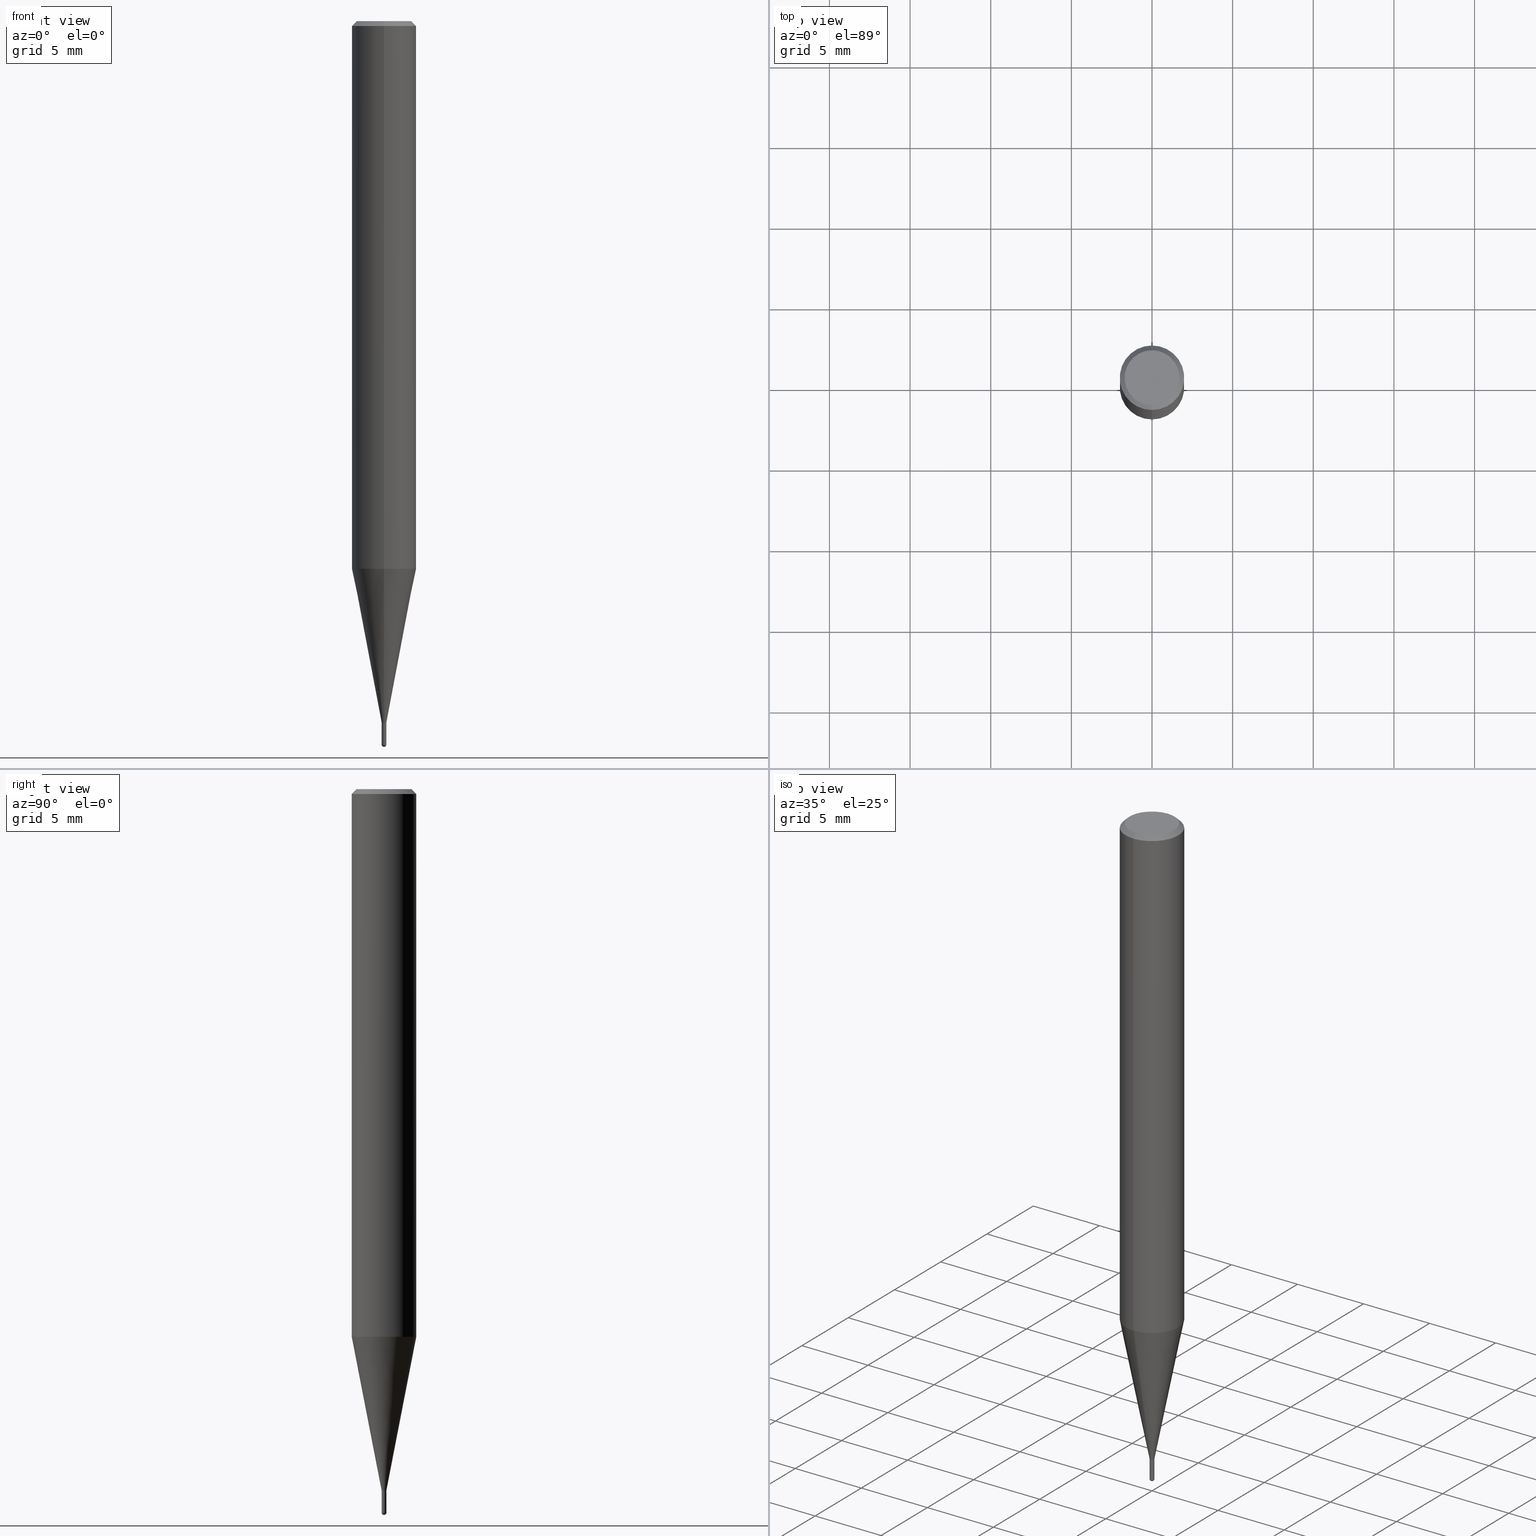
[diagram: canonical four-view strip — front | top / right | iso, engineering-drawing reading convention]
A machine part, canonical four-view strip (front | top / right | iso — engineering-drawing reading convention). The complete STEP part file that produces these views, byte-faithful:
ISO-10303-21;
HEADER;
FILE_DESCRIPTION(('no description'),'unknown implementation level');
FILE_NAME('CSELB2003-015-Huellk.stp','  ',('CIMSOURCE GmbH'),('CADClick - KiM GmbH - www.kimweb.de'),'unknown preprocess','ACIS','unknown authorization');
FILE_SCHEMA(('automotive_design'));
ENDSEC;
DATA;
#1=MECHANICAL_DESIGN_GEOMETRIC_PRESENTATION_REPRESENTATION(' ',(#14,#15,#16,#17,#18,#19,#20,#21,#22,#23,#24,#25,#26,#27,#28,#29,#30,#31,#32,#33,#34,#35,#36,#37,#38,#39,#40,#41,#42,#43,#44,#45,#46,#47,#48,#49,#50,#51,#52,#53,#54,#55,#56,#57,#58,#59,#60,#61,#62,#63,#64,#65,#66,#67,#68,#69,#70,#71,#72,#73,#74),#10);
#2=PRODUCT_DEFINITION_CONTEXT('',#75,'design');
#3=APPLICATION_PROTOCOL_DEFINITION('INTERNATIONAL STANDARD','automotive_design',1994,#75);
#4=PRODUCT_CATEGORY_RELATIONSHIP('NONE','NONE',#76,#77);
#5=SHAPE_DEFINITION_REPRESENTATION(#78,#79);
#6=PRODUCT_DEFINITION_CONTEXT('',#80,'design');
#7=APPLICATION_PROTOCOL_DEFINITION('INTERNATIONAL STANDARD','automotive_design',1994,#80);
#8=PRODUCT_CATEGORY_RELATIONSHIP('NONE','NONE',#81,#82);
#9=SHAPE_DEFINITION_REPRESENTATION(#83,#84);
#10= (GEOMETRIC_REPRESENTATION_CONTEXT(3)GLOBAL_UNCERTAINTY_ASSIGNED_CONTEXT((#87))GLOBAL_UNIT_ASSIGNED_CONTEXT((#89,#90,#91))REPRESENTATION_CONTEXT('NONE','WORKSPACE'));
#14=STYLED_ITEM('',(#93),#94);
#15=STYLED_ITEM('',(#95),#96);
#16=STYLED_ITEM('',(#97),#98);
#17=STYLED_ITEM('',(#99),#100);
#18=STYLED_ITEM('',(#101),#102);
#19=STYLED_ITEM('',(#103),#104);
#20=STYLED_ITEM('',(#105),#106);
#21=STYLED_ITEM('',(#107),#108);
#22=STYLED_ITEM('',(#109),#110);
#23=STYLED_ITEM('',(#111),#112);
#24=STYLED_ITEM('',(#113),#114);
#25=STYLED_ITEM('',(#115),#116);
#26=STYLED_ITEM('',(#117),#118);
#27=STYLED_ITEM('',(#119),#120);
#28=STYLED_ITEM('',(#121),#122);
#29=STYLED_ITEM('',(#123),#124);
#30=STYLED_ITEM('',(#125),#126);
#31=STYLED_ITEM('',(#127),#128);
#32=STYLED_ITEM('',(#129),#130);
#33=STYLED_ITEM('',(#131),#132);
#34=STYLED_ITEM('',(#133),#134);
#35=STYLED_ITEM('',(#135),#136);
#36=STYLED_ITEM('',(#137),#138);
#37=STYLED_ITEM('',(#139),#140);
#38=STYLED_ITEM('',(#141),#142);
#39=STYLED_ITEM('',(#143),#144);
#40=STYLED_ITEM('',(#145),#146);
#41=STYLED_ITEM('',(#147),#148);
#42=STYLED_ITEM('',(#149),#150);
#43=STYLED_ITEM('',(#151),#152);
#44=STYLED_ITEM('',(#153),#154);
#45=STYLED_ITEM('',(#155),#156);
#46=STYLED_ITEM('',(#157),#158);
#47=STYLED_ITEM('',(#159),#160);
#48=STYLED_ITEM('',(#161),#162);
#49=STYLED_ITEM('',(#163),#164);
#50=STYLED_ITEM('',(#165),#166);
#51=STYLED_ITEM('',(#167),#168);
#52=STYLED_ITEM('',(#169),#170);
#53=STYLED_ITEM('',(#171),#172);
#54=STYLED_ITEM('',(#173),#174);
#55=STYLED_ITEM('',(#175),#176);
#56=STYLED_ITEM('',(#177),#178);
#57=STYLED_ITEM('',(#179),#180);
#58=STYLED_ITEM('',(#181),#182);
#59=STYLED_ITEM('',(#183),#184);
#60=STYLED_ITEM('',(#185),#186);
#61=STYLED_ITEM('',(#187),#188);
#62=STYLED_ITEM('',(#189),#190);
#63=STYLED_ITEM('',(#191),#192);
#64=STYLED_ITEM('',(#193),#194);
#65=STYLED_ITEM('',(#195),#196);
#66=STYLED_ITEM('',(#197),#198);
#67=STYLED_ITEM('',(#199),#200);
#68=STYLED_ITEM('',(#201),#202);
#69=STYLED_ITEM('',(#203),#204);
#70=STYLED_ITEM('',(#205),#206);
#71=STYLED_ITEM('',(#207),#208);
#72=STYLED_ITEM('',(#209),#210);
#73=STYLED_ITEM('',(#211),#212);
#74=STYLED_ITEM('',(#213),#214);
#75=APPLICATION_CONTEXT(' ');
#76=PRODUCT_CATEGORY('part','NONE');
#77=PRODUCT_RELATED_PRODUCT_CATEGORY('detail',' ',(#215));
#78=PRODUCT_DEFINITION_SHAPE('NONE','NONE',#216);
#79=ADVANCED_BREP_SHAPE_REPRESENTATION('1',(#196,#217),#10);
#80=APPLICATION_CONTEXT(' ');
#81=PRODUCT_CATEGORY('part','NONE');
#82=PRODUCT_RELATED_PRODUCT_CATEGORY('detail',' ',(#218));
#83=PRODUCT_DEFINITION_SHAPE('NONE','NONE',#219);
#84=ADVANCED_BREP_SHAPE_REPRESENTATION('2',(#124,#220),#10);
#87=UNCERTAINTY_MEASURE_WITH_UNIT(LENGTH_MEASURE(1.0E-006),#89,'','');
#89= (CONVERSION_BASED_UNIT('MILLIMETRE',#223)LENGTH_UNIT()NAMED_UNIT(#226));
#90= (NAMED_UNIT(#228)PLANE_ANGLE_UNIT()SI_UNIT($,.RADIAN.));
#91= (NAMED_UNIT(#228)SOLID_ANGLE_UNIT()SI_UNIT($,.STERADIAN.));
#93=PRESENTATION_STYLE_ASSIGNMENT((#234));
#94=VERTEX_POINT('',#235);
#95=PRESENTATION_STYLE_ASSIGNMENT((#236));
#96=EDGE_CURVE('',#192,#166,#237,.T.);
#97=PRESENTATION_STYLE_ASSIGNMENT((#238));
#98=EDGE_CURVE('',#100,#138,#239,.T.);
#99=PRESENTATION_STYLE_ASSIGNMENT((#240));
#100=VERTEX_POINT('',#241);
#101=PRESENTATION_STYLE_ASSIGNMENT((#242));
#102=EDGE_CURVE('',#94,#142,#243,.T.);
#103=PRESENTATION_STYLE_ASSIGNMENT((#244));
#104=EDGE_CURVE('',#100,#206,#245,.T.);
#105=PRESENTATION_STYLE_ASSIGNMENT((#246));
#106=VERTEX_POINT('',#247);
#107=PRESENTATION_STYLE_ASSIGNMENT((#248));
#108=EDGE_CURVE('',#162,#206,#249,.T.);
#109=PRESENTATION_STYLE_ASSIGNMENT((#250));
#110=VERTEX_POINT('',#251);
#111=PRESENTATION_STYLE_ASSIGNMENT((#252));
#112=EDGE_CURVE('',#110,#204,#253,.T.);
#113=PRESENTATION_STYLE_ASSIGNMENT((#254));
#114=EDGE_CURVE('',#142,#130,#255,.T.);
#115=PRESENTATION_STYLE_ASSIGNMENT((#256));
#116=EDGE_CURVE('',#166,#192,#257,.T.);
#117=PRESENTATION_STYLE_ASSIGNMENT((#258));
#118=VERTEX_POINT('',#259);
#119=PRESENTATION_STYLE_ASSIGNMENT((#260));
#120=EDGE_CURVE('',#138,#100,#261,.T.);
#121=PRESENTATION_STYLE_ASSIGNMENT((#262));
#122=EDGE_CURVE('',#184,#118,#263,.T.);
#123=PRESENTATION_STYLE_ASSIGNMENT((#264));
#124=MANIFOLD_SOLID_BREP('2',#265);
#125=PRESENTATION_STYLE_ASSIGNMENT((#266));
#126=EDGE_CURVE('',#110,#166,#267,.T.);
#127=PRESENTATION_STYLE_ASSIGNMENT((#268));
#128=ADVANCED_FACE('',(#269),#270,.T.);
#129=PRESENTATION_STYLE_ASSIGNMENT((#271));
#130=VERTEX_POINT('',#272);
#131=PRESENTATION_STYLE_ASSIGNMENT((#273));
#132=EDGE_CURVE('',#142,#94,#274,.T.);
#133=PRESENTATION_STYLE_ASSIGNMENT((#275));
#134=EDGE_CURVE('',#162,#138,#276,.T.);
#135=PRESENTATION_STYLE_ASSIGNMENT((#277));
#136=ADVANCED_FACE('',(#278),#279,.T.);
#137=PRESENTATION_STYLE_ASSIGNMENT((#280));
#138=VERTEX_POINT('',#281);
#139=PRESENTATION_STYLE_ASSIGNMENT((#282));
#140=ADVANCED_FACE('',(#283),#284,.T.);
#141=PRESENTATION_STYLE_ASSIGNMENT((#285));
#142=VERTEX_POINT('',#286);
#143=PRESENTATION_STYLE_ASSIGNMENT((#287));
#144=ADVANCED_FACE('',(#288),#289,.T.);
#145=PRESENTATION_STYLE_ASSIGNMENT((#290));
#146=EDGE_CURVE('',#130,#194,#291,.T.);
#147=PRESENTATION_STYLE_ASSIGNMENT((#292));
#148=ADVANCED_FACE('',(#293),#294,.T.);
#149=PRESENTATION_STYLE_ASSIGNMENT((#295));
#150=EDGE_CURVE('',#206,#162,#296,.T.);
#151=PRESENTATION_STYLE_ASSIGNMENT((#297));
#152=ADVANCED_FACE('',(#298),#299,.T.);
#153=PRESENTATION_STYLE_ASSIGNMENT((#300));
#154=ADVANCED_FACE('',(#301),#302,.T.);
#155=PRESENTATION_STYLE_ASSIGNMENT((#303));
#156=ADVANCED_FACE('',(#304),#305,.T.);
#157=PRESENTATION_STYLE_ASSIGNMENT((#306));
#158=EDGE_CURVE('',#174,#106,#307,.T.);
#159=PRESENTATION_STYLE_ASSIGNMENT((#308));
#160=EDGE_CURVE('',#206,#118,#309,.T.);
#161=PRESENTATION_STYLE_ASSIGNMENT((#310));
#162=VERTEX_POINT('',#311);
#163=PRESENTATION_STYLE_ASSIGNMENT((#312));
#164=ADVANCED_FACE('',(#313),#314,.T.);
#165=PRESENTATION_STYLE_ASSIGNMENT((#315));
#166=VERTEX_POINT('',#316);
#167=PRESENTATION_STYLE_ASSIGNMENT((#317));
#168=EDGE_CURVE('',#106,#174,#318,.T.);
#169=PRESENTATION_STYLE_ASSIGNMENT((#319));
#170=EDGE_CURVE('',#184,#162,#320,.T.);
#171=PRESENTATION_STYLE_ASSIGNMENT((#321));
#172=ADVANCED_FACE('',(#322,#323),#324,.T.);
#173=PRESENTATION_STYLE_ASSIGNMENT((#325));
#174=VERTEX_POINT('',#326);
#175=PRESENTATION_STYLE_ASSIGNMENT((#327));
#176=EDGE_CURVE('',#130,#174,#328,.T.);
#177=PRESENTATION_STYLE_ASSIGNMENT((#329));
#178=EDGE_CURVE('',#204,#110,#330,.T.);
#179=PRESENTATION_STYLE_ASSIGNMENT((#331));
#180=EDGE_CURVE('',#106,#194,#332,.T.);
#181=PRESENTATION_STYLE_ASSIGNMENT((#333));
#182=EDGE_CURVE('',#194,#130,#334,.T.);
#183=PRESENTATION_STYLE_ASSIGNMENT((#335));
#184=VERTEX_POINT('',#336);
#185=PRESENTATION_STYLE_ASSIGNMENT((#337));
#186=ADVANCED_FACE('',(#338),#339,.T.);
#187=PRESENTATION_STYLE_ASSIGNMENT((#340));
#188=ADVANCED_FACE('',(#341),#342,.T.);
#189=PRESENTATION_STYLE_ASSIGNMENT((#343));
#190=EDGE_CURVE('',#110,#204,#344,.T.);
#191=PRESENTATION_STYLE_ASSIGNMENT((#345));
#192=VERTEX_POINT('',#346);
#193=PRESENTATION_STYLE_ASSIGNMENT((#347));
#194=VERTEX_POINT('',#348);
#195=PRESENTATION_STYLE_ASSIGNMENT((#349));
#196=MANIFOLD_SOLID_BREP('1',#350);
#197=PRESENTATION_STYLE_ASSIGNMENT((#351));
#198=ADVANCED_FACE('',(#352),#353,.T.);
#199=PRESENTATION_STYLE_ASSIGNMENT((#354));
#200=ADVANCED_FACE('',(#355),#356,.T.);
#201=PRESENTATION_STYLE_ASSIGNMENT((#357));
#202=EDGE_CURVE('',#194,#94,#358,.T.);
#203=PRESENTATION_STYLE_ASSIGNMENT((#359));
#204=VERTEX_POINT('',#360);
#205=PRESENTATION_STYLE_ASSIGNMENT((#361));
#206=VERTEX_POINT('',#362);
#207=PRESENTATION_STYLE_ASSIGNMENT((#363));
#208=ADVANCED_FACE('',(#364),#365,.T.);
#209=PRESENTATION_STYLE_ASSIGNMENT((#366));
#210=EDGE_CURVE('',#118,#184,#367,.T.);
#211=PRESENTATION_STYLE_ASSIGNMENT((#368));
#212=ADVANCED_FACE('',(#369),#370,.T.);
#213=PRESENTATION_STYLE_ASSIGNMENT((#371));
#214=EDGE_CURVE('',#192,#204,#372,.T.);
#215=PRODUCT('1','1','PART-1-DESC',(#373));
#216=PRODUCT_DEFINITION('NONE','NONE',#374,#2);
#217=AXIS2_PLACEMENT_3D('',#375,#376,#377);
#218=PRODUCT('2','2','PART-2-DESC',(#378));
#219=PRODUCT_DEFINITION('NONE','NONE',#379,#6);
#220=AXIS2_PLACEMENT_3D('',#380,#381,#382);
#223=LENGTH_MEASURE_WITH_UNIT(LENGTH_MEASURE(1.0),#383);
#226=DIMENSIONAL_EXPONENTS(1.0,0.0,0.0,0.0,0.0,0.0,0.0);
#228=DIMENSIONAL_EXPONENTS(0.0,0.0,0.0,0.0,0.0,0.0,0.0);
#234=POINT_STYLE(' ',#384,POSITIVE_LENGTH_MEASURE(1.0E-006),#385);
#235=CARTESIAN_POINT('',(0.0,2.0,-33.957));
#236=CURVE_STYLE('',#386,POSITIVE_LENGTH_MEASURE(1.0E-006),#387);
#237=CIRCLE('',#388,0.1499);
#238=CURVE_STYLE('',#389,POSITIVE_LENGTH_MEASURE(1.0E-006),#390);
#239=CIRCLE('',#391,1.99995);
#240=POINT_STYLE(' ',#392,POSITIVE_LENGTH_MEASURE(1.0E-006),#393);
#241=CARTESIAN_POINT('',(0.0,1.99995,-33.957));
#242=CURVE_STYLE('',#394,POSITIVE_LENGTH_MEASURE(1.0E-006),#395);
#243=CIRCLE('',#396,2.0);
#244=CURVE_STYLE('',#397,POSITIVE_LENGTH_MEASURE(1.0E-006),#398);
#245=LINE('',#399,#400);
#246=POINT_STYLE(' ',#401,POSITIVE_LENGTH_MEASURE(1.0E-006),#402);
#247=CARTESIAN_POINT('',(0.0,1.7,0.0));
#248=CURVE_STYLE('',#403,POSITIVE_LENGTH_MEASURE(1.0E-006),#404);
#249=CIRCLE('',#405,0.14495);
#250=POINT_STYLE(' ',#406,POSITIVE_LENGTH_MEASURE(1.0E-006),#407);
#251=CARTESIAN_POINT('',(1.83690953073356E-017,-0.15,-44.85));
#252=CURVE_STYLE('',#408,POSITIVE_LENGTH_MEASURE(1.0E-006),#409);
#253=CIRCLE('',#410,0.15);
#254=CURVE_STYLE('',#411,POSITIVE_LENGTH_MEASURE(1.0E-006),#412);
#255=LINE('',#413,#414);
#256=CURVE_STYLE('',#415,POSITIVE_LENGTH_MEASURE(1.0E-006),#416);
#257=CIRCLE('',#417,0.1499);
#258=POINT_STYLE(' ',#418,POSITIVE_LENGTH_MEASURE(1.0E-006),#419);
#259=CARTESIAN_POINT('',(0.0,0.14495,-44.76));
#260=CURVE_STYLE('',#420,POSITIVE_LENGTH_MEASURE(1.0E-006),#421);
#261=CIRCLE('',#422,1.99995);
#262=CURVE_STYLE('',#423,POSITIVE_LENGTH_MEASURE(1.0E-006),#424);
#263=CIRCLE('',#425,0.14495);
#264=SURFACE_STYLE_USAGE(.BOTH.,#426);
#265=CLOSED_SHELL('',(#144,#208,#198,#200,#156));
#266=CURVE_STYLE('',#427,POSITIVE_LENGTH_MEASURE(1.0E-006),#428);
#267=LINE('',#429,#430);
#268=SURFACE_STYLE_USAGE(.BOTH.,#431);
#269=FACE_OUTER_BOUND('',#432,.T.);
#270=CYLINDRICAL_SURFACE('',#433,0.14495);
#271=POINT_STYLE(' ',#434,POSITIVE_LENGTH_MEASURE(1.0E-006),#435);
#272=CARTESIAN_POINT('',(2.44921270764475E-016,-2.0,-0.299999999999997));
#273=CURVE_STYLE('',#436,POSITIVE_LENGTH_MEASURE(1.0E-006),#437);
#274=CIRCLE('',#438,2.0);
#275=CURVE_STYLE('',#439,POSITIVE_LENGTH_MEASURE(1.0E-006),#440);
#276=LINE('',#441,#442);
#277=SURFACE_STYLE_USAGE(.BOTH.,#443);
#278=FACE_OUTER_BOUND('',#444,.T.);
#279=CYLINDRICAL_SURFACE('',#445,2.0);
#280=POINT_STYLE(' ',#446,POSITIVE_LENGTH_MEASURE(1.0E-006),#447);
#281=CARTESIAN_POINT('',(2.44915147732706E-016,-1.99995,-33.957));
#282=SURFACE_STYLE_USAGE(.BOTH.,#448);
#283=FACE_OUTER_BOUND('',#449,.T.);
#284=PLANE('',#450);
#285=POINT_STYLE(' ',#451,POSITIVE_LENGTH_MEASURE(1.0E-006),#452);
#286=CARTESIAN_POINT('',(2.44921270764475E-016,-2.0,-33.957));
#287=SURFACE_STYLE_USAGE(.BOTH.,#453);
#288=FACE_OUTER_BOUND('',#454,.T.);
#289=SPHERICAL_SURFACE('',#455,0.15);
#290=CURVE_STYLE('',#456,POSITIVE_LENGTH_MEASURE(1.0E-006),#457);
#291=CIRCLE('',#458,2.0);
#292=SURFACE_STYLE_USAGE(.BOTH.,#459);
#293=FACE_OUTER_BOUND('',#460,.T.);
#294=CYLINDRICAL_SURFACE('',#461,0.14495);
#295=CURVE_STYLE('',#462,POSITIVE_LENGTH_MEASURE(1.0E-006),#463);
#296=CIRCLE('',#464,0.14495);
#297=SURFACE_STYLE_USAGE(.BOTH.,#465);
#298=FACE_OUTER_BOUND('',#466,.T.);
#299=CONICAL_SURFACE('',#467,1.07245,0.19198911666217);
#300=SURFACE_STYLE_USAGE(.BOTH.,#468);
#301=FACE_OUTER_BOUND('',#469,.T.);
#302=PLANE('',#470);
#303=SURFACE_STYLE_USAGE(.BOTH.,#471);
#304=FACE_OUTER_BOUND('',#472,.T.);
#305=SPHERICAL_SURFACE('',#473,0.15);
#306=CURVE_STYLE('',#474,POSITIVE_LENGTH_MEASURE(1.0E-006),#475);
#307=CIRCLE('',#476,1.7);
#308=CURVE_STYLE('',#477,POSITIVE_LENGTH_MEASURE(1.0E-006),#478);
#309=LINE('',#479,#480);
#310=POINT_STYLE(' ',#481,POSITIVE_LENGTH_MEASURE(1.0E-006),#482);
#311=CARTESIAN_POINT('',(1.77506690986554E-017,-0.14495,-43.5));
#312=SURFACE_STYLE_USAGE(.BOTH.,#483);
#313=FACE_OUTER_BOUND('',#484,.T.);
#314=CONICAL_SURFACE('',#485,1.07245,0.19198911666217);
#315=POINT_STYLE(' ',#486,POSITIVE_LENGTH_MEASURE(1.0E-006),#487);
#316=CARTESIAN_POINT('',(1.83568492437974E-017,-0.1499,-44.76));
#317=CURVE_STYLE('',#488,POSITIVE_LENGTH_MEASURE(1.0E-006),#489);
#318=CIRCLE('',#490,1.7);
#319=CURVE_STYLE('',#491,POSITIVE_LENGTH_MEASURE(1.0E-006),#492);
#320=LINE('',#493,#494);
#321=SURFACE_STYLE_USAGE(.BOTH.,#495);
#322=FACE_OUTER_BOUND('',#496,.T.);
#323=FACE_BOUND('',#497,.T.);
#324=PLANE('',#498);
#325=POINT_STYLE(' ',#499,POSITIVE_LENGTH_MEASURE(1.0E-006),#500);
#326=CARTESIAN_POINT('',(2.08183080149804E-016,-1.7,0.0));
#327=CURVE_STYLE('',#501,POSITIVE_LENGTH_MEASURE(1.0E-006),#502);
#328=LINE('',#503,#504);
#329=CURVE_STYLE('',#505,POSITIVE_LENGTH_MEASURE(1.0E-006),#506);
#330=CIRCLE('',#507,0.15);
#331=CURVE_STYLE('',#508,POSITIVE_LENGTH_MEASURE(1.0E-006),#509);
#332=LINE('',#510,#511);
#333=CURVE_STYLE('',#512,POSITIVE_LENGTH_MEASURE(1.0E-006),#513);
#334=CIRCLE('',#514,2.0);
#335=POINT_STYLE(' ',#515,POSITIVE_LENGTH_MEASURE(1.0E-006),#516);
#336=CARTESIAN_POINT('',(1.77506690986554E-017,-0.14495,-44.76));
#337=SURFACE_STYLE_USAGE(.BOTH.,#517);
#338=FACE_OUTER_BOUND('',#518,.T.);
#339=CONICAL_SURFACE('',#519,1.85,0.785398163397453);
#340=SURFACE_STYLE_USAGE(.BOTH.,#520);
#341=FACE_OUTER_BOUND('',#521,.T.);
#342=CYLINDRICAL_SURFACE('',#522,2.0);
#343=CURVE_STYLE('',#523,POSITIVE_LENGTH_MEASURE(1.0E-006),#524);
#344=CIRCLE('',#525,0.15);
#345=POINT_STYLE(' ',#526,POSITIVE_LENGTH_MEASURE(1.0E-006),#527);
#346=CARTESIAN_POINT('',(0.0,0.1499,-44.76));
#347=POINT_STYLE(' ',#528,POSITIVE_LENGTH_MEASURE(1.0E-006),#529);
#348=CARTESIAN_POINT('',(0.0,2.0,-0.299999999999997));
#349=SURFACE_STYLE_USAGE(.BOTH.,#530);
#350=CLOSED_SHELL('',(#148,#164,#136,#186,#172,#154,#212,#188,#152,#128,#140));
#351=SURFACE_STYLE_USAGE(.BOTH.,#531);
#352=FACE_OUTER_BOUND('',#532,.T.);
#353=PLANE('',#533);
#354=SURFACE_STYLE_USAGE(.BOTH.,#534);
#355=FACE_OUTER_BOUND('',#535,.T.);
#356=CONICAL_SURFACE('',#536,0.14995,0.00111111065386396);
#357=CURVE_STYLE('',#537,POSITIVE_LENGTH_MEASURE(1.0E-006),#538);
#358=LINE('',#539,#540);
#359=POINT_STYLE(' ',#541,POSITIVE_LENGTH_MEASURE(1.0E-006),#542);
#360=CARTESIAN_POINT('',(0.0,0.15,-44.85));
#361=POINT_STYLE(' ',#543,POSITIVE_LENGTH_MEASURE(1.0E-006),#544);
#362=CARTESIAN_POINT('',(0.0,0.14495,-43.5));
#363=SURFACE_STYLE_USAGE(.BOTH.,#545);
#364=FACE_OUTER_BOUND('',#546,.T.);
#365=CONICAL_SURFACE('',#547,0.14995,0.00111111065386396);
#366=CURVE_STYLE('',#548,POSITIVE_LENGTH_MEASURE(1.0E-006),#549);
#367=CIRCLE('',#550,0.14495);
#368=SURFACE_STYLE_USAGE(.BOTH.,#551);
#369=FACE_OUTER_BOUND('',#552,.T.);
#370=CONICAL_SURFACE('',#553,1.85,0.785398163397453);
#371=CURVE_STYLE('',#554,POSITIVE_LENGTH_MEASURE(1.0E-006),#555);
#372=LINE('',#556,#557);
#373=PRODUCT_CONTEXT('',#75,'mechanical');
#374=PRODUCT_DEFINITION_FORMATION_WITH_SPECIFIED_SOURCE(' ','NONE',#215,.NOT_KNOWN.);
#375=CARTESIAN_POINT('',(0.0,0.0,0.0));
#376=DIRECTION('',(0.0,0.0,1.0));
#377=DIRECTION('',(1.0,0.0,0.0));
#378=PRODUCT_CONTEXT('',#80,'mechanical');
#379=PRODUCT_DEFINITION_FORMATION_WITH_SPECIFIED_SOURCE(' ','NONE',#218,.NOT_KNOWN.);
#380=CARTESIAN_POINT('',(0.0,0.0,0.0));
#381=DIRECTION('',(0.0,0.0,1.0));
#382=DIRECTION('',(1.0,0.0,0.0));
#383= (NAMED_UNIT(#226)LENGTH_UNIT()SI_UNIT(.MILLI.,.METRE.));
#384=PRE_DEFINED_MARKER('');
#385=COLOUR_RGB('',0.498039215803146,0.498039215803146,0.498039215803146);
#386=DRAUGHTING_PRE_DEFINED_CURVE_FONT('continuous');
#387=COLOUR_RGB('',0.800000011920929,0.800000011920929,0.800000011920929);
#388=AXIS2_PLACEMENT_3D('',#559,#560,#561);
#389=DRAUGHTING_PRE_DEFINED_CURVE_FONT('continuous');
#390=COLOUR_RGB('',0.498039215803146,0.498039215803146,0.498039215803146);
#391=AXIS2_PLACEMENT_3D('',#562,#563,#564);
#392=PRE_DEFINED_MARKER('');
#393=COLOUR_RGB('',0.498039215803146,0.498039215803146,0.498039215803146);
#394=DRAUGHTING_PRE_DEFINED_CURVE_FONT('continuous');
#395=COLOUR_RGB('',0.498039215803146,0.498039215803146,0.498039215803146);
#396=AXIS2_PLACEMENT_3D('',#565,#566,#567);
#397=DRAUGHTING_PRE_DEFINED_CURVE_FONT('continuous');
#398=COLOUR_RGB('',0.498039215803146,0.498039215803146,0.498039215803146);
#399=CARTESIAN_POINT('',(-1.31332908415681E-016,1.07245,-38.7285));
#400=VECTOR('',#568,1.0);
#401=PRE_DEFINED_MARKER('');
#402=COLOUR_RGB('',0.498039215803146,0.498039215803146,0.498039215803146);
#403=DRAUGHTING_PRE_DEFINED_CURVE_FONT('continuous');
#404=COLOUR_RGB('',0.498039215803146,0.498039215803146,0.498039215803146);
#405=AXIS2_PLACEMENT_3D('',#569,#570,#571);
#406=PRE_DEFINED_MARKER('');
#407=COLOUR_RGB('',0.800000011920929,0.800000011920929,0.800000011920929);
#408=DRAUGHTING_PRE_DEFINED_CURVE_FONT('continuous');
#409=COLOUR_RGB('',0.800000011920929,0.800000011920929,0.800000011920929);
#410=AXIS2_PLACEMENT_3D('',#572,#573,#574);
#411=DRAUGHTING_PRE_DEFINED_CURVE_FONT('continuous');
#412=COLOUR_RGB('',0.498039215803146,0.498039215803146,0.498039215803146);
#413=CARTESIAN_POINT('',(2.44921270764475E-016,-2.0,-17.1285));
#414=VECTOR('',#575,1.0);
#415=DRAUGHTING_PRE_DEFINED_CURVE_FONT('continuous');
#416=COLOUR_RGB('',0.800000011920929,0.800000011920929,0.800000011920929);
#417=AXIS2_PLACEMENT_3D('',#576,#577,#578);
#418=PRE_DEFINED_MARKER('');
#419=COLOUR_RGB('',0.498039215803146,0.498039215803146,0.498039215803146);
#420=DRAUGHTING_PRE_DEFINED_CURVE_FONT('continuous');
#421=COLOUR_RGB('',0.498039215803146,0.498039215803146,0.498039215803146);
#422=AXIS2_PLACEMENT_3D('',#579,#580,#581);
#423=DRAUGHTING_PRE_DEFINED_CURVE_FONT('continuous');
#424=COLOUR_RGB('',0.498039215803146,0.498039215803146,0.498039215803146);
#425=AXIS2_PLACEMENT_3D('',#582,#583,#584);
#426=SURFACE_SIDE_STYLE('',(#585));
#427=DRAUGHTING_PRE_DEFINED_CURVE_FONT('continuous');
#428=COLOUR_RGB('',0.800000011920929,0.800000011920929,0.800000011920929);
#429=CARTESIAN_POINT('',(1.83629722755665E-017,-0.14995,-44.805));
#430=VECTOR('',#586,1.0);
#431=SURFACE_SIDE_STYLE('',(#587));
#432=EDGE_LOOP('',(#588,#589,#590,#591));
#433=AXIS2_PLACEMENT_3D('',#592,#593,#594);
#434=PRE_DEFINED_MARKER('');
#435=COLOUR_RGB('',0.498039215803146,0.498039215803146,0.498039215803146);
#436=DRAUGHTING_PRE_DEFINED_CURVE_FONT('continuous');
#437=COLOUR_RGB('',0.498039215803146,0.498039215803146,0.498039215803146);
#438=AXIS2_PLACEMENT_3D('',#595,#596,#597);
#439=DRAUGHTING_PRE_DEFINED_CURVE_FONT('continuous');
#440=COLOUR_RGB('',0.498039215803146,0.498039215803146,0.498039215803146);
#441=CARTESIAN_POINT('',(1.31332908415681E-016,-1.07245,-38.7285));
#442=VECTOR('',#598,1.0);
#443=SURFACE_SIDE_STYLE('',(#599));
#444=EDGE_LOOP('',(#600,#601,#602,#603));
#445=AXIS2_PLACEMENT_3D('',#604,#605,#606);
#446=PRE_DEFINED_MARKER('');
#447=COLOUR_RGB('',0.498039215803146,0.498039215803146,0.498039215803146);
#448=SURFACE_SIDE_STYLE('',(#607));
#449=EDGE_LOOP('',(#608,#609));
#450=AXIS2_PLACEMENT_3D('',#610,#611,#612);
#451=PRE_DEFINED_MARKER('');
#452=COLOUR_RGB('',0.498039215803146,0.498039215803146,0.498039215803146);
#453=SURFACE_SIDE_STYLE('',(#613));
#454=EDGE_LOOP('',(#614,#615));
#455=AXIS2_PLACEMENT_3D('',#616,#617,#618);
#456=DRAUGHTING_PRE_DEFINED_CURVE_FONT('continuous');
#457=COLOUR_RGB('',0.498039215803146,0.498039215803146,0.498039215803146);
#458=AXIS2_PLACEMENT_3D('',#619,#620,#621);
#459=SURFACE_SIDE_STYLE('',(#622));
#460=EDGE_LOOP('',(#623,#624,#625,#626));
#461=AXIS2_PLACEMENT_3D('',#627,#628,#629);
#462=DRAUGHTING_PRE_DEFINED_CURVE_FONT('continuous');
#463=COLOUR_RGB('',0.498039215803146,0.498039215803146,0.498039215803146);
#464=AXIS2_PLACEMENT_3D('',#630,#631,#632);
#465=SURFACE_SIDE_STYLE('',(#633));
#466=EDGE_LOOP('',(#634,#635,#636,#637));
#467=AXIS2_PLACEMENT_3D('',#638,#639,#640);
#468=SURFACE_SIDE_STYLE('',(#641));
#469=EDGE_LOOP('',(#642,#643));
#470=AXIS2_PLACEMENT_3D('',#644,#645,#646);
#471=SURFACE_SIDE_STYLE('',(#647));
#472=EDGE_LOOP('',(#648,#649));
#473=AXIS2_PLACEMENT_3D('',#650,#651,#652);
#474=DRAUGHTING_PRE_DEFINED_CURVE_FONT('continuous');
#475=COLOUR_RGB('',0.498039215803146,0.498039215803146,0.498039215803146);
#476=AXIS2_PLACEMENT_3D('',#653,#654,#655);
#477=DRAUGHTING_PRE_DEFINED_CURVE_FONT('continuous');
#478=COLOUR_RGB('',0.498039215803146,0.498039215803146,0.498039215803146);
#479=CARTESIAN_POINT('',(-1.77506690986554E-017,0.14495,-44.13));
#480=VECTOR('',#656,1.0);
#481=PRE_DEFINED_MARKER('');
#482=COLOUR_RGB('',0.498039215803146,0.498039215803146,0.498039215803146);
#483=SURFACE_SIDE_STYLE('',(#657));
#484=EDGE_LOOP('',(#658,#659,#660,#661));
#485=AXIS2_PLACEMENT_3D('',#662,#663,#664);
#486=PRE_DEFINED_MARKER('');
#487=COLOUR_RGB('',0.800000011920929,0.800000011920929,0.800000011920929);
#488=DRAUGHTING_PRE_DEFINED_CURVE_FONT('continuous');
#489=COLOUR_RGB('',0.498039215803146,0.498039215803146,0.498039215803146);
#490=AXIS2_PLACEMENT_3D('',#665,#666,#667);
#491=DRAUGHTING_PRE_DEFINED_CURVE_FONT('continuous');
#492=COLOUR_RGB('',0.498039215803146,0.498039215803146,0.498039215803146);
#493=CARTESIAN_POINT('',(1.77506690986554E-017,-0.14495,-44.13));
#494=VECTOR('',#668,1.0);
#495=SURFACE_SIDE_STYLE('',(#669));
#496=EDGE_LOOP('',(#670,#671));
#497=EDGE_LOOP('',(#672,#673));
#498=AXIS2_PLACEMENT_3D('',#674,#675,#676);
#499=PRE_DEFINED_MARKER('');
#500=COLOUR_RGB('',0.498039215803146,0.498039215803146,0.498039215803146);
#501=DRAUGHTING_PRE_DEFINED_CURVE_FONT('continuous');
#502=COLOUR_RGB('',0.498039215803146,0.498039215803146,0.498039215803146);
#503=CARTESIAN_POINT('',(2.2655217545714E-016,-1.85,-0.149999999999999));
#504=VECTOR('',#677,1.0);
#505=DRAUGHTING_PRE_DEFINED_CURVE_FONT('continuous');
#506=COLOUR_RGB('',0.800000011920929,0.800000011920929,0.800000011920929);
#507=AXIS2_PLACEMENT_3D('',#678,#679,#680);
#508=DRAUGHTING_PRE_DEFINED_CURVE_FONT('continuous');
#509=COLOUR_RGB('',0.498039215803146,0.498039215803146,0.498039215803146);
#510=CARTESIAN_POINT('',(-2.2655217545714E-016,1.85,-0.149999999999999));
#511=VECTOR('',#681,1.0);
#512=DRAUGHTING_PRE_DEFINED_CURVE_FONT('continuous');
#513=COLOUR_RGB('',0.498039215803146,0.498039215803146,0.498039215803146);
#514=AXIS2_PLACEMENT_3D('',#682,#683,#684);
#515=PRE_DEFINED_MARKER('');
#516=COLOUR_RGB('',0.498039215803146,0.498039215803146,0.498039215803146);
#517=SURFACE_SIDE_STYLE('',(#685));
#518=EDGE_LOOP('',(#686,#687,#688,#689));
#519=AXIS2_PLACEMENT_3D('',#690,#691,#692);
#520=SURFACE_SIDE_STYLE('',(#693));
#521=EDGE_LOOP('',(#694,#695,#696,#697));
#522=AXIS2_PLACEMENT_3D('',#698,#699,#700);
#523=DRAUGHTING_PRE_DEFINED_CURVE_FONT('continuous');
#524=COLOUR_RGB('',0.800000011920929,0.800000011920929,0.800000011920929);
#525=AXIS2_PLACEMENT_3D('',#701,#702,#703);
#526=PRE_DEFINED_MARKER('');
#527=COLOUR_RGB('',0.800000011920929,0.800000011920929,0.800000011920929);
#528=PRE_DEFINED_MARKER('');
#529=COLOUR_RGB('',0.498039215803146,0.498039215803146,0.498039215803146);
#530=SURFACE_SIDE_STYLE('',(#704));
#531=SURFACE_SIDE_STYLE('',(#705));
#532=EDGE_LOOP('',(#706,#707));
#533=AXIS2_PLACEMENT_3D('',#708,#709,#710);
#534=SURFACE_SIDE_STYLE('',(#711));
#535=EDGE_LOOP('',(#712,#713,#714,#715));
#536=AXIS2_PLACEMENT_3D('',#716,#717,#718);
#537=DRAUGHTING_PRE_DEFINED_CURVE_FONT('continuous');
#538=COLOUR_RGB('',0.498039215803146,0.498039215803146,0.498039215803146);
#539=CARTESIAN_POINT('',(-2.44921270764475E-016,2.0,-17.1285));
#540=VECTOR('',#719,1.0);
#541=PRE_DEFINED_MARKER('');
#542=COLOUR_RGB('',0.800000011920929,0.800000011920929,0.800000011920929);
#543=PRE_DEFINED_MARKER('');
#544=COLOUR_RGB('',0.498039215803146,0.498039215803146,0.498039215803146);
#545=SURFACE_SIDE_STYLE('',(#720));
#546=EDGE_LOOP('',(#721,#722,#723,#724));
#547=AXIS2_PLACEMENT_3D('',#725,#726,#727);
#548=DRAUGHTING_PRE_DEFINED_CURVE_FONT('continuous');
#549=COLOUR_RGB('',0.498039215803146,0.498039215803146,0.498039215803146);
#550=AXIS2_PLACEMENT_3D('',#728,#729,#730);
#551=SURFACE_SIDE_STYLE('',(#731));
#552=EDGE_LOOP('',(#732,#733,#734,#735));
#553=AXIS2_PLACEMENT_3D('',#736,#737,#738);
#554=DRAUGHTING_PRE_DEFINED_CURVE_FONT('continuous');
#555=COLOUR_RGB('',0.800000011920929,0.800000011920929,0.800000011920929);
#556=CARTESIAN_POINT('',(-1.83629722755665E-017,0.14995,-44.805));
#557=VECTOR('',#739,1.0);
#559=CARTESIAN_POINT('',(0.0,0.0,-44.76));
#560=DIRECTION('',(0.0,0.0,-1.0));
#561=DIRECTION('',(0.0,1.0,0.0));
#562=CARTESIAN_POINT('',(0.0,0.0,-33.957));
#563=DIRECTION('',(0.0,0.0,-1.0));
#564=DIRECTION('',(0.0,1.0,0.0));
#565=CARTESIAN_POINT('',(0.0,0.0,-33.957));
#566=DIRECTION('',(0.0,0.0,-1.0));
#567=DIRECTION('',(0.0,1.0,0.0));
#568=DIRECTION('',(2.33669392942694E-017,-0.190811841056793,-0.981626630299177));
#569=CARTESIAN_POINT('',(0.0,0.0,-43.5));
#570=DIRECTION('',(0.0,0.0,-1.0));
#571=DIRECTION('',(0.0,1.0,0.0));
#572=CARTESIAN_POINT('',(0.0,0.0,-44.85));
#573=DIRECTION('',(0.0,0.0,-1.0));
#574=DIRECTION('',(0.0,1.0,0.0));
#575=DIRECTION('',(-0.0,-0.0,1.0));
#576=CARTESIAN_POINT('',(0.0,0.0,-44.76));
#577=DIRECTION('',(0.0,0.0,-1.0));
#578=DIRECTION('',(0.0,1.0,0.0));
#579=CARTESIAN_POINT('',(0.0,0.0,-33.957));
#580=DIRECTION('',(0.0,0.0,-1.0));
#581=DIRECTION('',(0.0,1.0,0.0));
#582=CARTESIAN_POINT('',(0.0,0.0,-44.76));
#583=DIRECTION('',(0.0,0.0,-1.0));
#584=DIRECTION('',(0.0,1.0,0.0));
#585=SURFACE_STYLE_FILL_AREA(#740);
#586=DIRECTION('',(-1.36067288654788E-019,0.00111111042524057,0.999999382716621));
#587=SURFACE_STYLE_FILL_AREA(#741);
#588=ORIENTED_EDGE('',*,*,#160,.T.);
#589=ORIENTED_EDGE('',*,*,#122,.F.);
#590=ORIENTED_EDGE('',*,*,#170,.T.);
#591=ORIENTED_EDGE('',*,*,#108,.T.);
#592=CARTESIAN_POINT('',(0.0,0.0,-44.13));
#593=DIRECTION('',(-0.0,-0.0,1.0));
#594=DIRECTION('',(0.0,1.0,0.0));
#595=CARTESIAN_POINT('',(0.0,0.0,-33.957));
#596=DIRECTION('',(0.0,0.0,-1.0));
#597=DIRECTION('',(0.0,1.0,0.0));
#598=DIRECTION('',(2.33669392942694E-017,-0.190811841056793,0.981626630299177));
#599=SURFACE_STYLE_FILL_AREA(#742);
#600=ORIENTED_EDGE('',*,*,#202,.F.);
#601=ORIENTED_EDGE('',*,*,#182,.T.);
#602=ORIENTED_EDGE('',*,*,#114,.F.);
#603=ORIENTED_EDGE('',*,*,#102,.F.);
#604=CARTESIAN_POINT('',(0.0,0.0,-17.1285));
#605=DIRECTION('',(-0.0,-0.0,1.0));
#606=DIRECTION('',(0.0,1.0,0.0));
#607=SURFACE_STYLE_FILL_AREA(#743);
#608=ORIENTED_EDGE('',*,*,#210,.T.);
#609=ORIENTED_EDGE('',*,*,#122,.T.);
#610=CARTESIAN_POINT('',(0.0,0.072475,-44.76));
#611=DIRECTION('',(0.0,0.0,-1.0));
#612=DIRECTION('',(0.0,1.0,0.0));
#613=SURFACE_STYLE_FILL_AREA(#744);
#614=ORIENTED_EDGE('',*,*,#190,.F.);
#615=ORIENTED_EDGE('',*,*,#112,.T.);
#616=CARTESIAN_POINT('',(0.0,0.0,-44.85));
#617=DIRECTION('',(0.0,1.0,0.0));
#618=DIRECTION('',(0.0,0.0,-1.0));
#619=CARTESIAN_POINT('',(0.0,0.0,-0.299999999999997));
#620=DIRECTION('',(0.0,0.0,-1.0));
#621=DIRECTION('',(0.0,1.0,0.0));
#622=SURFACE_STYLE_FILL_AREA(#745);
#623=ORIENTED_EDGE('',*,*,#160,.F.);
#624=ORIENTED_EDGE('',*,*,#150,.T.);
#625=ORIENTED_EDGE('',*,*,#170,.F.);
#626=ORIENTED_EDGE('',*,*,#210,.F.);
#627=CARTESIAN_POINT('',(0.0,0.0,-44.13));
#628=DIRECTION('',(-0.0,-0.0,1.0));
#629=DIRECTION('',(0.0,1.0,0.0));
#630=CARTESIAN_POINT('',(0.0,0.0,-43.5));
#631=DIRECTION('',(0.0,0.0,-1.0));
#632=DIRECTION('',(0.0,1.0,0.0));
#633=SURFACE_STYLE_FILL_AREA(#746);
#634=ORIENTED_EDGE('',*,*,#104,.T.);
#635=ORIENTED_EDGE('',*,*,#108,.F.);
#636=ORIENTED_EDGE('',*,*,#134,.T.);
#637=ORIENTED_EDGE('',*,*,#120,.T.);
#638=CARTESIAN_POINT('',(0.0,0.0,-38.7285));
#639=DIRECTION('',(-0.0,-0.0,1.0));
#640=DIRECTION('',(0.0,1.0,0.0));
#641=SURFACE_STYLE_FILL_AREA(#747);
#642=ORIENTED_EDGE('',*,*,#168,.F.);
#643=ORIENTED_EDGE('',*,*,#158,.F.);
#644=CARTESIAN_POINT('',(0.0,0.85,0.0));
#645=DIRECTION('',(-0.0,0.0,1.0));
#646=DIRECTION('',(0.0,-1.0,0.0));
#647=SURFACE_STYLE_FILL_AREA(#748);
#648=ORIENTED_EDGE('',*,*,#190,.T.);
#649=ORIENTED_EDGE('',*,*,#178,.T.);
#650=CARTESIAN_POINT('',(0.0,0.0,-44.85));
#651=DIRECTION('',(0.0,1.0,0.0));
#652=DIRECTION('',(0.0,0.0,-1.0));
#653=CARTESIAN_POINT('',(0.0,0.0,0.0));
#654=DIRECTION('',(0.0,0.0,-1.0));
#655=DIRECTION('',(0.0,1.0,0.0));
#656=DIRECTION('',(0.0,0.0,-1.0));
#657=SURFACE_STYLE_FILL_AREA(#749);
#658=ORIENTED_EDGE('',*,*,#104,.F.);
#659=ORIENTED_EDGE('',*,*,#98,.T.);
#660=ORIENTED_EDGE('',*,*,#134,.F.);
#661=ORIENTED_EDGE('',*,*,#150,.F.);
#662=CARTESIAN_POINT('',(0.0,0.0,-38.7285));
#663=DIRECTION('',(-0.0,-0.0,1.0));
#664=DIRECTION('',(0.0,1.0,0.0));
#665=CARTESIAN_POINT('',(0.0,0.0,0.0));
#666=DIRECTION('',(0.0,0.0,-1.0));
#667=DIRECTION('',(0.0,1.0,0.0));
#668=DIRECTION('',(-0.0,-0.0,1.0));
#669=SURFACE_STYLE_FILL_AREA(#750);
#670=ORIENTED_EDGE('',*,*,#102,.T.);
#671=ORIENTED_EDGE('',*,*,#132,.T.);
#672=ORIENTED_EDGE('',*,*,#98,.F.);
#673=ORIENTED_EDGE('',*,*,#120,.F.);
#674=CARTESIAN_POINT('',(0.0,1.0,-33.957));
#675=DIRECTION('',(0.0,0.0,-1.0));
#676=DIRECTION('',(0.0,1.0,0.0));
#677=DIRECTION('',(-8.6592745707194E-017,0.707106781186551,0.707106781186544));
#678=CARTESIAN_POINT('',(0.0,0.0,-44.85));
#679=DIRECTION('',(0.0,0.0,-1.0));
#680=DIRECTION('',(0.0,1.0,0.0));
#681=DIRECTION('',(-8.6592745707194E-017,0.707106781186551,-0.707106781186544));
#682=CARTESIAN_POINT('',(0.0,0.0,-0.299999999999997));
#683=DIRECTION('',(0.0,0.0,-1.0));
#684=DIRECTION('',(0.0,1.0,0.0));
#685=SURFACE_STYLE_FILL_AREA(#751);
#686=ORIENTED_EDGE('',*,*,#180,.F.);
#687=ORIENTED_EDGE('',*,*,#168,.T.);
#688=ORIENTED_EDGE('',*,*,#176,.F.);
#689=ORIENTED_EDGE('',*,*,#182,.F.);
#690=CARTESIAN_POINT('',(0.0,0.0,-0.149999999999999));
#691=DIRECTION('',(0.0,-0.0,-1.0));
#692=DIRECTION('',(0.0,1.0,0.0));
#693=SURFACE_STYLE_FILL_AREA(#752);
#694=ORIENTED_EDGE('',*,*,#202,.T.);
#695=ORIENTED_EDGE('',*,*,#132,.F.);
#696=ORIENTED_EDGE('',*,*,#114,.T.);
#697=ORIENTED_EDGE('',*,*,#146,.T.);
#698=CARTESIAN_POINT('',(0.0,0.0,-17.1285));
#699=DIRECTION('',(-0.0,-0.0,1.0));
#700=DIRECTION('',(0.0,1.0,0.0));
#701=CARTESIAN_POINT('',(0.0,0.0,-44.85));
#702=DIRECTION('',(1.0,0.0,1.22460635382239E-016));
#703=DIRECTION('',(-1.22460635382239E-016,0.0,1.0));
#704=SURFACE_STYLE_FILL_AREA(#753);
#705=SURFACE_STYLE_FILL_AREA(#754);
#706=ORIENTED_EDGE('',*,*,#96,.F.);
#707=ORIENTED_EDGE('',*,*,#116,.F.);
#708=CARTESIAN_POINT('',(0.0,0.07495,-44.76));
#709=DIRECTION('',(-0.0,0.0,1.0));
#710=DIRECTION('',(0.0,-1.0,0.0));
#711=SURFACE_STYLE_FILL_AREA(#755);
#712=ORIENTED_EDGE('',*,*,#214,.T.);
#713=ORIENTED_EDGE('',*,*,#112,.F.);
#714=ORIENTED_EDGE('',*,*,#126,.T.);
#715=ORIENTED_EDGE('',*,*,#116,.T.);
#716=CARTESIAN_POINT('',(0.0,0.0,-44.805));
#717=DIRECTION('',(0.0,-0.0,-1.0));
#718=DIRECTION('',(0.0,1.0,0.0));
#719=DIRECTION('',(0.0,0.0,-1.0));
#720=SURFACE_STYLE_FILL_AREA(#756);
#721=ORIENTED_EDGE('',*,*,#214,.F.);
#722=ORIENTED_EDGE('',*,*,#96,.T.);
#723=ORIENTED_EDGE('',*,*,#126,.F.);
#724=ORIENTED_EDGE('',*,*,#178,.F.);
#725=CARTESIAN_POINT('',(0.0,0.0,-44.805));
#726=DIRECTION('',(0.0,-0.0,-1.0));
#727=DIRECTION('',(0.0,1.0,0.0));
#728=CARTESIAN_POINT('',(0.0,0.0,-44.76));
#729=DIRECTION('',(0.0,0.0,-1.0));
#730=DIRECTION('',(0.0,1.0,0.0));
#731=SURFACE_STYLE_FILL_AREA(#757);
#732=ORIENTED_EDGE('',*,*,#180,.T.);
#733=ORIENTED_EDGE('',*,*,#146,.F.);
#734=ORIENTED_EDGE('',*,*,#176,.T.);
#735=ORIENTED_EDGE('',*,*,#158,.T.);
#736=CARTESIAN_POINT('',(0.0,0.0,-0.149999999999999));
#737=DIRECTION('',(0.0,-0.0,-1.0));
#738=DIRECTION('',(0.0,1.0,0.0));
#739=DIRECTION('',(-1.36067288654788E-019,0.00111111042524057,-0.999999382716621));
#740=FILL_AREA_STYLE('',(#758));
#741=FILL_AREA_STYLE('',(#759));
#742=FILL_AREA_STYLE('',(#760));
#743=FILL_AREA_STYLE('',(#761));
#744=FILL_AREA_STYLE('',(#762));
#745=FILL_AREA_STYLE('',(#763));
#746=FILL_AREA_STYLE('',(#764));
#747=FILL_AREA_STYLE('',(#765));
#748=FILL_AREA_STYLE('',(#766));
#749=FILL_AREA_STYLE('',(#767));
#750=FILL_AREA_STYLE('',(#768));
#751=FILL_AREA_STYLE('',(#769));
#752=FILL_AREA_STYLE('',(#770));
#753=FILL_AREA_STYLE('',(#771));
#754=FILL_AREA_STYLE('',(#772));
#755=FILL_AREA_STYLE('',(#773));
#756=FILL_AREA_STYLE('',(#774));
#757=FILL_AREA_STYLE('',(#775));
#758=FILL_AREA_STYLE_COLOUR('',#776);
#759=FILL_AREA_STYLE_COLOUR('',#777);
#760=FILL_AREA_STYLE_COLOUR('',#778);
#761=FILL_AREA_STYLE_COLOUR('',#779);
#762=FILL_AREA_STYLE_COLOUR('',#780);
#763=FILL_AREA_STYLE_COLOUR('',#781);
#764=FILL_AREA_STYLE_COLOUR('',#782);
#765=FILL_AREA_STYLE_COLOUR('',#783);
#766=FILL_AREA_STYLE_COLOUR('',#784);
#767=FILL_AREA_STYLE_COLOUR('',#785);
#768=FILL_AREA_STYLE_COLOUR('',#786);
#769=FILL_AREA_STYLE_COLOUR('',#787);
#770=FILL_AREA_STYLE_COLOUR('',#788);
#771=FILL_AREA_STYLE_COLOUR('',#789);
#772=FILL_AREA_STYLE_COLOUR('',#790);
#773=FILL_AREA_STYLE_COLOUR('',#791);
#774=FILL_AREA_STYLE_COLOUR('',#792);
#775=FILL_AREA_STYLE_COLOUR('',#793);
#776=COLOUR_RGB('',0.800000011920929,0.800000011920929,0.800000011920929);
#777=COLOUR_RGB('',0.498039215803146,0.498039215803146,0.498039215803146);
#778=COLOUR_RGB('',0.498039215803146,0.498039215803146,0.498039215803146);
#779=COLOUR_RGB('',0.498039215803146,0.498039215803146,0.498039215803146);
#780=COLOUR_RGB('',0.800000011920929,0.800000011920929,0.800000011920929);
#781=COLOUR_RGB('',0.498039215803146,0.498039215803146,0.498039215803146);
#782=COLOUR_RGB('',0.498039215803146,0.498039215803146,0.498039215803146);
#783=COLOUR_RGB('',0.498039215803146,0.498039215803146,0.498039215803146);
#784=COLOUR_RGB('',0.800000011920929,0.800000011920929,0.800000011920929);
#785=COLOUR_RGB('',0.498039215803146,0.498039215803146,0.498039215803146);
#786=COLOUR_RGB('',0.498039215803146,0.498039215803146,0.498039215803146);
#787=COLOUR_RGB('',0.498039215803146,0.498039215803146,0.498039215803146);
#788=COLOUR_RGB('',0.498039215803146,0.498039215803146,0.498039215803146);
#789=COLOUR_RGB('',0.498039215803146,0.498039215803146,0.498039215803146);
#790=COLOUR_RGB('',0.800000011920929,0.800000011920929,0.800000011920929);
#791=COLOUR_RGB('',0.800000011920929,0.800000011920929,0.800000011920929);
#792=COLOUR_RGB('',0.800000011920929,0.800000011920929,0.800000011920929);
#793=COLOUR_RGB('',0.498039215803146,0.498039215803146,0.498039215803146);
#794=AXIS2_PLACEMENT_3D('PCS',#795,#796,#797);
#795=CARTESIAN_POINT('',(0.0,0.0,0.0));
#796=DIRECTION('',(0.0,0.0,1.0));
#797=DIRECTION('',(1.0,0.0,0.0));
#798=AXIS2_PLACEMENT_3D('CIP',#799,#800,#801);
#799=CARTESIAN_POINT('',(0.0,0.0,-45.0));
#800=DIRECTION('',(0.0,0.0,1.0));
#801=DIRECTION('',(1.0,0.0,0.0));
#802=AXIS2_PLACEMENT_3D('CRP',#803,#804,#805);
#803=CARTESIAN_POINT('',(-0.15,0.0,-45.0));
#804=DIRECTION('',(0.0,0.0,1.0));
#805=DIRECTION('',(1.0,0.0,0.0));
#806=AXIS2_PLACEMENT_3D('MCS',#807,#808,#809);
#807=CARTESIAN_POINT('',(0.0,0.0,-33.957));
#808=DIRECTION('',(0.0,0.0,1.0));
#809=DIRECTION('',(1.0,0.0,0.0));
#810=CONSTRUCTIVE_GEOMETRY_REPRESENTATION_RELATIONSHIP('coordinate systems',$,#79,#811);
#811=CONSTRUCTIVE_GEOMETRY_REPRESENTATION('coordinate systems',(#794,#798,#802,#806),#10);
ENDSEC;
END-ISO-10303-21;
